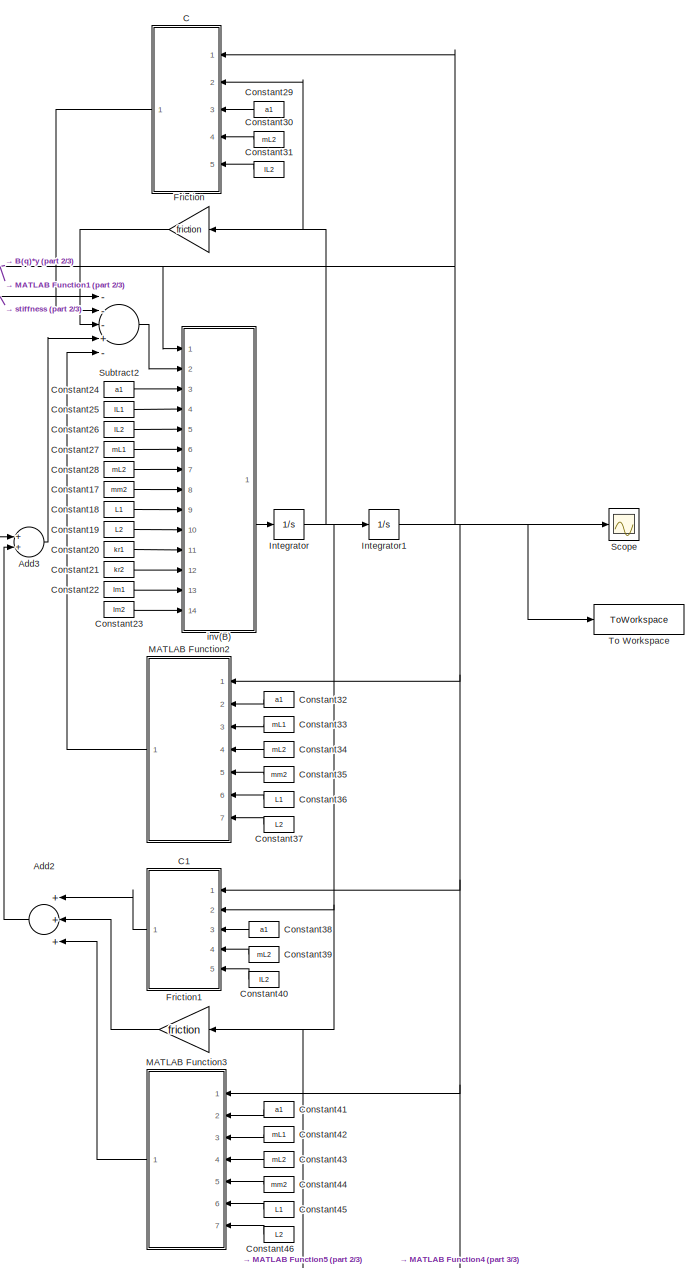
[diagram: root canvas - part 1/3, right side, full height]
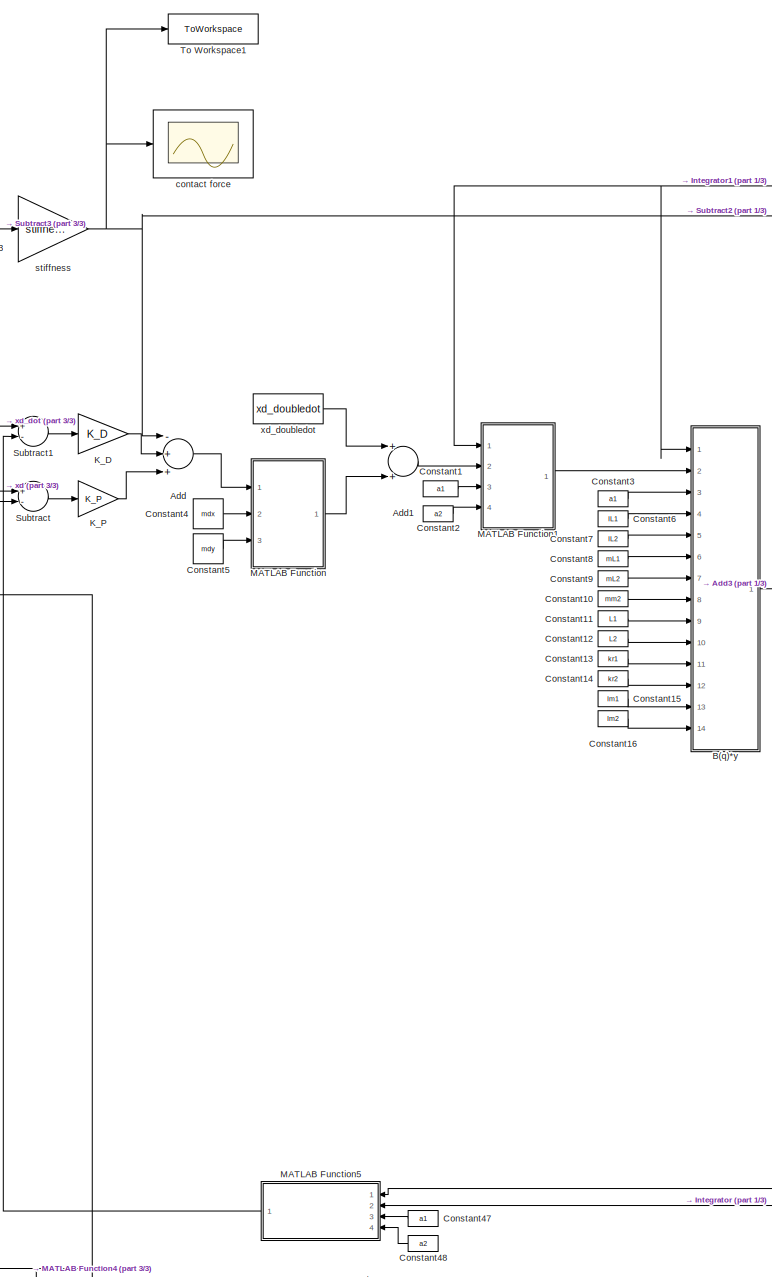
[diagram: root canvas - part 2/3, center side, full height]
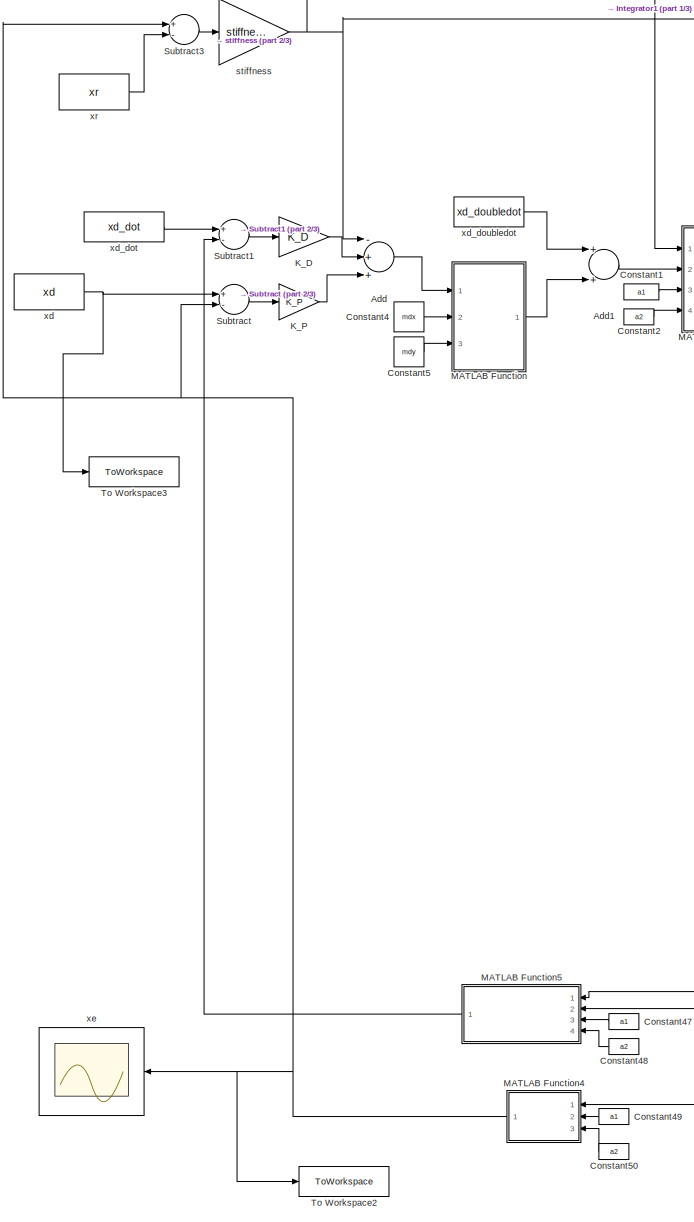
[diagram: root canvas - part 3/3, left side, full height]
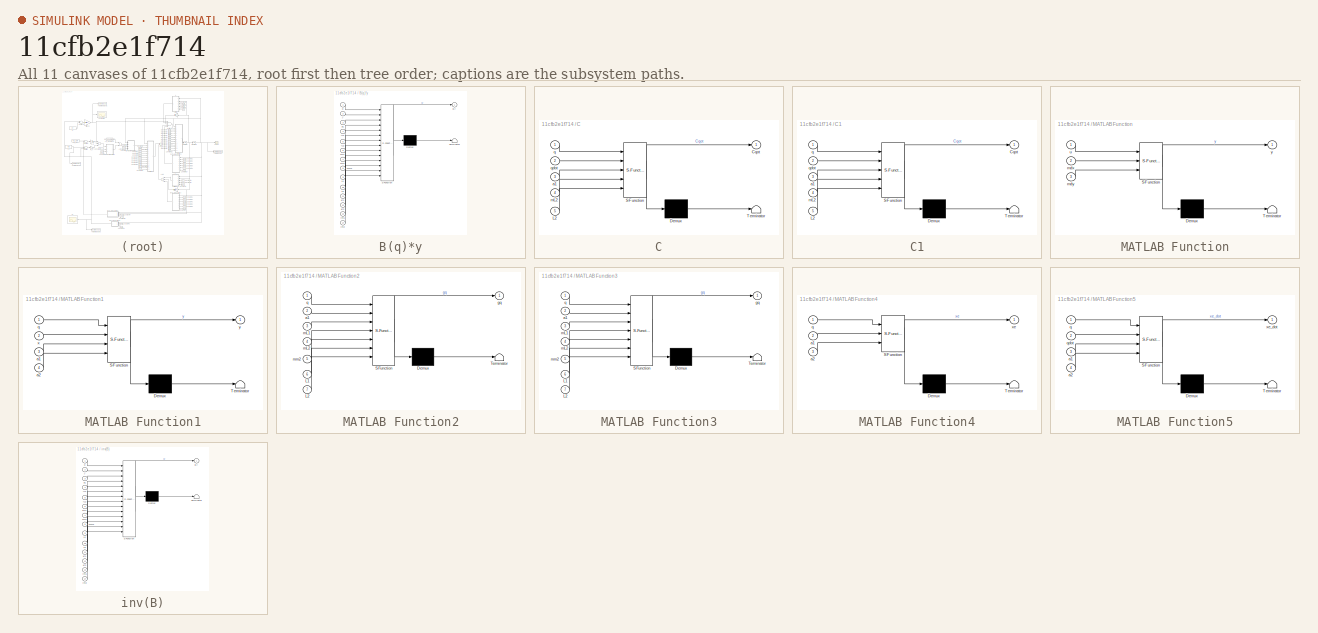
[diagram: thumbnail index - all 11 canvases of the model, root first then tree order]
MODEL slx_11cfb2e1f714
KIND model
CONFIG AbsTol = auto
CONFIG EnableMultiTasking = off
CONFIG FixedStep = auto
CONFIG MaxStep = auto
CONFIG MinStep = auto
CONFIG RelTol = 1e-3
CONFIG SampleTimeConstraint = Unconstrained
CONFIG Solver = VariableStepAuto
CONFIG SolverName = VariableStepAuto
CONFIG StartTime = 0.0
CONFIG StopTime = 1
BLOCK [Sum] Add
  InputSameDT = off
  Inputs = -++
  OutDataTypeStr = Inherit: Inherit via internal rule
  Ports = [3, 1]
  SaturateOnIntegerOverflow = off
BLOCK [Sum] Add1
  InputSameDT = off
  OutDataTypeStr = Inherit: Inherit via internal rule
  Ports = [2, 1]
  SaturateOnIntegerOverflow = off
BLOCK [Sum] Add2
  InputSameDT = off
  Inputs = +++
  OutDataTypeStr = Inherit: Inherit via internal rule
  Ports = [3, 1]
  SaturateOnIntegerOverflow = off
BLOCK [Sum] Add3
  InputSameDT = off
  OutDataTypeStr = Inherit: Inherit via internal rule
  Ports = [2, 1]
  SaturateOnIntegerOverflow = off
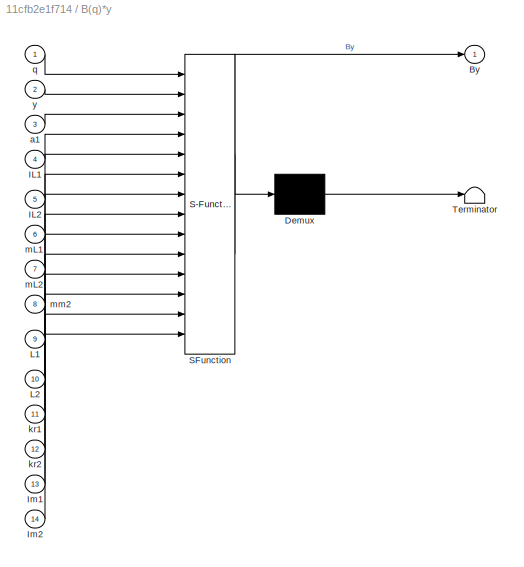
BLOCK [SubSystem] B(q)*y
  ErrorFcn = Stateflow.Translate.translate
  PermitHierarchicalResolution = ExplicitOnly
  Ports = [14, 1]
  RequestExecContextInheritance = off
  SFBlockType = MATLAB Function
  TreatAsAtomicUnit = on
BLOCK [Demux] B(q)*y/ Demux 
  Outputs = 1
  Ports = [1, 1]
BLOCK [S-Function] B(q)*y/ SFunction 
  EnableBusSupport = on
  FunctionName = sf_sfun
  PortCounts = [14 2]
  Ports = [14, 2]
  SFcnIsStateOwnerBlock = off
  SFunctionDeploymentMode = off
  Tag = Stateflow S-Function 3
BLOCK [Terminator] B(q)*y/ Terminator 
BLOCK [Outport] B(q)*y/By
  IconDisplay = Port number
BLOCK [Inport] B(q)*y/IL1
  IconDisplay = Port number
  Port = 4
BLOCK [Inport] B(q)*y/IL2
  IconDisplay = Port number
  Port = 5
BLOCK [Inport] B(q)*y/Im1
  IconDisplay = Port number
  Port = 13
BLOCK [Inport] B(q)*y/Im2
  IconDisplay = Port number
  Port = 14
BLOCK [Inport] B(q)*y/L1
  IconDisplay = Port number
  Port = 9
BLOCK [Inport] B(q)*y/L2
  IconDisplay = Port number
  Port = 10
BLOCK [Inport] B(q)*y/a1
  IconDisplay = Port number
  Port = 3
BLOCK [Inport] B(q)*y/kr1
  IconDisplay = Port number
  Port = 11
BLOCK [Inport] B(q)*y/kr2
  IconDisplay = Port number
  Port = 12
BLOCK [Inport] B(q)*y/mL1
  IconDisplay = Port number
  Port = 6
BLOCK [Inport] B(q)*y/mL2
  IconDisplay = Port number
  Port = 7
BLOCK [Inport] B(q)*y/mm2
  IconDisplay = Port number
  Port = 8
BLOCK [Inport] B(q)*y/q
  IconDisplay = Port number
BLOCK [Inport] B(q)*y/y
  IconDisplay = Port number
  Port = 2
BLOCK [SubSystem] C
  ErrorFcn = Stateflow.Translate.translate
  PermitHierarchicalResolution = ExplicitOnly
  Ports = [5, 1]
  RequestExecContextInheritance = off
  SFBlockType = MATLAB Function
  TreatAsAtomicUnit = on
BLOCK [Demux] C/ Demux 
  Outputs = 1
  Ports = [1, 1]
BLOCK [S-Function] C/ SFunction 
  EnableBusSupport = on
  FunctionName = sf_sfun
  PortCounts = [5 2]
  Ports = [5, 2]
  SFcnIsStateOwnerBlock = off
  SFunctionDeploymentMode = off
  Tag = Stateflow S-Function 5
BLOCK [Terminator] C/ Terminator 
BLOCK [Outport] C/Cqot
  IconDisplay = Port number
BLOCK [Inport] C/L2
  IconDisplay = Port number
  Port = 5
BLOCK [Inport] C/a1
  IconDisplay = Port number
  Port = 3
BLOCK [Inport] C/mL2
  IconDisplay = Port number
  Port = 4
BLOCK [Inport] C/q
  IconDisplay = Port number
BLOCK [Inport] C/qdot
  IconDisplay = Port number
  Port = 2
BLOCK [SubSystem] C1
  ErrorFcn = Stateflow.Translate.translate
  PermitHierarchicalResolution = ExplicitOnly
  Ports = [5, 1]
  RequestExecContextInheritance = off
  SFBlockType = MATLAB Function
  TreatAsAtomicUnit = on
BLOCK [Demux] C1/ Demux 
  Outputs = 1
  Ports = [1, 1]
BLOCK [S-Function] C1/ SFunction 
  EnableBusSupport = on
  FunctionName = sf_sfun
  PortCounts = [5 2]
  Ports = [5, 2]
  SFcnIsStateOwnerBlock = off
  SFunctionDeploymentMode = off
  Tag = Stateflow S-Function 7
BLOCK [Terminator] C1/ Terminator 
BLOCK [Outport] C1/Cqot
  IconDisplay = Port number
BLOCK [Inport] C1/L2
  IconDisplay = Port number
  Port = 5
BLOCK [Inport] C1/a1
  IconDisplay = Port number
  Port = 3
BLOCK [Inport] C1/mL2
  IconDisplay = Port number
  Port = 4
BLOCK [Inport] C1/q
  IconDisplay = Port number
BLOCK [Inport] C1/qdot
  IconDisplay = Port number
  Port = 2
BLOCK [Constant] Constant1
  Value = a1
BLOCK [Constant] Constant10
  Value = mm2
BLOCK [Constant] Constant11
  Value = L1
BLOCK [Constant] Constant12
  Value = L2
BLOCK [Constant] Constant13
  Value = kr1
BLOCK [Constant] Constant14
  Value = kr2
BLOCK [Constant] Constant15
  Value = Im1
BLOCK [Constant] Constant16
  Value = Im2
BLOCK [Constant] Constant17
  Value = mm2
BLOCK [Constant] Constant18
  Value = L1
BLOCK [Constant] Constant19
  Value = L2
BLOCK [Constant] Constant2
  Value = a2
BLOCK [Constant] Constant20
  Value = kr1
BLOCK [Constant] Constant21
  Value = kr2
BLOCK [Constant] Constant22
  Value = Im1
BLOCK [Constant] Constant23
  Value = Im2
BLOCK [Constant] Constant24
  Value = a1
BLOCK [Constant] Constant25
  Value = IL1
BLOCK [Constant] Constant26
  Value = IL2
BLOCK [Constant] Constant27
  Value = mL1
BLOCK [Constant] Constant28
  Value = mL2
BLOCK [Constant] Constant29
  Value = a1
BLOCK [Constant] Constant3
  Value = a1
BLOCK [Constant] Constant30
  Value = mL2
BLOCK [Constant] Constant31
  Value = IL2
BLOCK [Constant] Constant32
  Value = a1
BLOCK [Constant] Constant33
  Value = mL1
BLOCK [Constant] Constant34
  Value = mL2
BLOCK [Constant] Constant35
  Value = mm2
BLOCK [Constant] Constant36
  Value = L1
BLOCK [Constant] Constant37
  Value = L2
BLOCK [Constant] Constant38
  Value = a1
BLOCK [Constant] Constant39
  Value = mL2
BLOCK [Constant] Constant4
  Value = mdx
BLOCK [Constant] Constant40
  Value = IL2
BLOCK [Constant] Constant41
  Value = a1
BLOCK [Constant] Constant42
  Value = mL1
BLOCK [Constant] Constant43
  Value = mL2
BLOCK [Constant] Constant44
  Value = mm2
BLOCK [Constant] Constant45
  Value = L1
BLOCK [Constant] Constant46
  Value = L2
BLOCK [Constant] Constant47
  Value = a1
BLOCK [Constant] Constant48
  Value = a2
BLOCK [Constant] Constant49
  Value = a1
BLOCK [Constant] Constant5
  Value = mdy
BLOCK [Constant] Constant50
  Value = a2
BLOCK [Constant] Constant6
  Value = IL1
BLOCK [Constant] Constant7
  Value = IL2
BLOCK [Constant] Constant8
  Value = mL1
BLOCK [Constant] Constant9
  Value = mL2
BLOCK [Gain] Friction
  Gain = friction
  OutDataTypeStr = Inherit: Inherit via internal rule
  ParamDataTypeStr = Inherit: Inherit via internal rule
  SaturateOnIntegerOverflow = off
BLOCK [Gain] Friction1
  Gain = friction
  OutDataTypeStr = Inherit: Inherit via internal rule
  ParamDataTypeStr = Inherit: Inherit via internal rule
  SaturateOnIntegerOverflow = off
BLOCK [Integrator] Integrator
  InitialCondition = [0; 0]
  Ports = [1, 1]
BLOCK [Integrator] Integrator1
  InitialCondition = qi
  Ports = [1, 1]
BLOCK [Gain] K_D
  Gain = K_D
  OutDataTypeStr = Inherit: Inherit via internal rule
  ParamDataTypeStr = Inherit: Inherit via internal rule
  SaturateOnIntegerOverflow = off
BLOCK [Gain] K_P
  Gain = K_P
  OutDataTypeStr = Inherit: Inherit via internal rule
  ParamDataTypeStr = Inherit: Inherit via internal rule
  SaturateOnIntegerOverflow = off
BLOCK [SubSystem] MATLAB Function
  ErrorFcn = Stateflow.Translate.translate
  PermitHierarchicalResolution = ExplicitOnly
  Ports = [3, 1]
  RequestExecContextInheritance = off
  SFBlockType = MATLAB Function
  TreatAsAtomicUnit = on
BLOCK [Demux] MATLAB Function/ Demux 
  Outputs = 1
  Ports = [1, 1]
BLOCK [S-Function] MATLAB Function/ SFunction 
  EnableBusSupport = on
  FunctionName = sf_sfun
  PortCounts = [3 2]
  Ports = [3, 2]
  SFcnIsStateOwnerBlock = off
  SFunctionDeploymentMode = off
  Tag = Stateflow S-Function 2
BLOCK [Terminator] MATLAB Function/ Terminator 
BLOCK [Inport] MATLAB Function/mdx
  IconDisplay = Port number
  Port = 2
BLOCK [Inport] MATLAB Function/mdy
  IconDisplay = Port number
  Port = 3
BLOCK [Inport] MATLAB Function/u
  IconDisplay = Port number
BLOCK [Outport] MATLAB Function/y
  IconDisplay = Port number
BLOCK [SubSystem] MATLAB Function1
  ErrorFcn = Stateflow.Translate.translate
  PermitHierarchicalResolution = ExplicitOnly
  Ports = [4, 1]
  RequestExecContextInheritance = off
  SFBlockType = MATLAB Function
  TreatAsAtomicUnit = on
BLOCK [Demux] MATLAB Function1/ Demux 
  Outputs = 1
  Ports = [1, 1]
BLOCK [S-Function] MATLAB Function1/ SFunction 
  EnableBusSupport = on
  FunctionName = sf_sfun
  PortCounts = [4 2]
  Ports = [4, 2]
  SFcnIsStateOwnerBlock = off
  SFunctionDeploymentMode = off
  Tag = Stateflow S-Function 1
BLOCK [Terminator] MATLAB Function1/ Terminator 
BLOCK [Inport] MATLAB Function1/a1
  IconDisplay = Port number
  Port = 3
BLOCK [Inport] MATLAB Function1/a2
  IconDisplay = Port number
  Port = 4
BLOCK [Inport] MATLAB Function1/q
  IconDisplay = Port number
BLOCK [Inport] MATLAB Function1/x
  IconDisplay = Port number
  Port = 2
BLOCK [Outport] MATLAB Function1/y
  IconDisplay = Port number
BLOCK [SubSystem] MATLAB Function2
  ErrorFcn = Stateflow.Translate.translate
  PermitHierarchicalResolution = ExplicitOnly
  Ports = [7, 1]
  RequestExecContextInheritance = off
  SFBlockType = MATLAB Function
  TreatAsAtomicUnit = on
BLOCK [Demux] MATLAB Function2/ Demux 
  Outputs = 1
  Ports = [1, 1]
BLOCK [S-Function] MATLAB Function2/ SFunction 
  EnableBusSupport = on
  FunctionName = sf_sfun
  PortCounts = [7 2]
  Ports = [7, 2]
  SFcnIsStateOwnerBlock = off
  SFunctionDeploymentMode = off
  Tag = Stateflow S-Function 6
BLOCK [Terminator] MATLAB Function2/ Terminator 
BLOCK [Inport] MATLAB Function2/L1
  IconDisplay = Port number
  Port = 6
BLOCK [Inport] MATLAB Function2/L2
  IconDisplay = Port number
  Port = 7
BLOCK [Inport] MATLAB Function2/a1
  IconDisplay = Port number
  Port = 2
BLOCK [Outport] MATLAB Function2/gq
  IconDisplay = Port number
BLOCK [Inport] MATLAB Function2/mL1
  IconDisplay = Port number
  Port = 3
BLOCK [Inport] MATLAB Function2/mL2
  IconDisplay = Port number
  Port = 4
BLOCK [Inport] MATLAB Function2/mm2
  IconDisplay = Port number
  Port = 5
BLOCK [Inport] MATLAB Function2/q
  IconDisplay = Port number
BLOCK [SubSystem] MATLAB Function3
  ErrorFcn = Stateflow.Translate.translate
  PermitHierarchicalResolution = ExplicitOnly
  Ports = [7, 1]
  RequestExecContextInheritance = off
  SFBlockType = MATLAB Function
  TreatAsAtomicUnit = on
BLOCK [Demux] MATLAB Function3/ Demux 
  Outputs = 1
  Ports = [1, 1]
BLOCK [S-Function] MATLAB Function3/ SFunction 
  EnableBusSupport = on
  FunctionName = sf_sfun
  PortCounts = [7 2]
  Ports = [7, 2]
  SFcnIsStateOwnerBlock = off
  SFunctionDeploymentMode = off
  Tag = Stateflow S-Function 8
BLOCK [Terminator] MATLAB Function3/ Terminator 
BLOCK [Inport] MATLAB Function3/L1
  IconDisplay = Port number
  Port = 6
BLOCK [Inport] MATLAB Function3/L2
  IconDisplay = Port number
  Port = 7
BLOCK [Inport] MATLAB Function3/a1
  IconDisplay = Port number
  Port = 2
BLOCK [Outport] MATLAB Function3/gq
  IconDisplay = Port number
BLOCK [Inport] MATLAB Function3/mL1
  IconDisplay = Port number
  Port = 3
BLOCK [Inport] MATLAB Function3/mL2
  IconDisplay = Port number
  Port = 4
BLOCK [Inport] MATLAB Function3/mm2
  IconDisplay = Port number
  Port = 5
BLOCK [Inport] MATLAB Function3/q
  IconDisplay = Port number
BLOCK [SubSystem] MATLAB Function4
  ErrorFcn = Stateflow.Translate.translate
  PermitHierarchicalResolution = ExplicitOnly
  Ports = [3, 1]
  RequestExecContextInheritance = off
  SFBlockType = MATLAB Function
  TreatAsAtomicUnit = on
BLOCK [Demux] MATLAB Function4/ Demux 
  Outputs = 1
  Ports = [1, 1]
BLOCK [S-Function] MATLAB Function4/ SFunction 
  EnableBusSupport = on
  FunctionName = sf_sfun
  PortCounts = [3 2]
  Ports = [3, 2]
  SFcnIsStateOwnerBlock = off
  SFunctionDeploymentMode = off
  Tag = Stateflow S-Function 10
BLOCK [Terminator] MATLAB Function4/ Terminator 
BLOCK [Inport] MATLAB Function4/a1
  IconDisplay = Port number
  Port = 2
BLOCK [Inport] MATLAB Function4/a2
  IconDisplay = Port number
  Port = 3
BLOCK [Inport] MATLAB Function4/q
  IconDisplay = Port number
BLOCK [Outport] MATLAB Function4/xe
  IconDisplay = Port number
BLOCK [SubSystem] MATLAB Function5
  ErrorFcn = Stateflow.Translate.translate
  PermitHierarchicalResolution = ExplicitOnly
  Ports = [4, 1]
  RequestExecContextInheritance = off
  SFBlockType = MATLAB Function
  TreatAsAtomicUnit = on
BLOCK [Demux] MATLAB Function5/ Demux 
  Outputs = 1
  Ports = [1, 1]
BLOCK [S-Function] MATLAB Function5/ SFunction 
  EnableBusSupport = on
  FunctionName = sf_sfun
  PortCounts = [4 2]
  Ports = [4, 2]
  SFcnIsStateOwnerBlock = off
  SFunctionDeploymentMode = off
  Tag = Stateflow S-Function 9
BLOCK [Terminator] MATLAB Function5/ Terminator 
BLOCK [Inport] MATLAB Function5/a1
  IconDisplay = Port number
  Port = 3
BLOCK [Inport] MATLAB Function5/a2
  IconDisplay = Port number
  Port = 4
BLOCK [Inport] MATLAB Function5/q
  IconDisplay = Port number
BLOCK [Inport] MATLAB Function5/qdot
  IconDisplay = Port number
  Port = 2
BLOCK [Outport] MATLAB Function5/xe_dot
  IconDisplay = Port number
BLOCK [Scope] Scope
  Floating = off
  NumInputPorts = 1
  Ports = [1]
  ScopeSpecificationString = Simulink.scopes.TimeScopeBlockCfg('CurrentConfiguration', extmgr.ConfigurationSet(extmgr.Configuration('Core','General UI',true),extmgr.Configuration('Core','Source UI',true),extmgr.Configuration('Sources','WiredSimulink',true),extmgr.Configuration('Visuals','Time Domain',true,'SerializedDisplays',{struct('MinYLimReal','-1.6889','MaxYLimReal','2.78369','YLabelReal','','MinYLimMag','0.00000','MaxYL...<+1347ch>
BLOCK [Sum] Subtract
  InputSameDT = off
  Inputs = +-
  OutDataTypeStr = Inherit: Inherit via internal rule
  Ports = [2, 1]
  SaturateOnIntegerOverflow = off
BLOCK [Sum] Subtract1
  InputSameDT = off
  Inputs = +-
  OutDataTypeStr = Inherit: Inherit via internal rule
  Ports = [2, 1]
  SaturateOnIntegerOverflow = off
BLOCK [Sum] Subtract2
  InputSameDT = off
  Inputs = ---+-
  OutDataTypeStr = Inherit: Inherit via internal rule
  Ports = [5, 1]
  SaturateOnIntegerOverflow = off
BLOCK [Sum] Subtract3
  InputSameDT = off
  Inputs = +-
  OutDataTypeStr = Inherit: Inherit via internal rule
  Ports = [2, 1]
  SaturateOnIntegerOverflow = off
BLOCK [ToWorkspace] To Workspace
  FixptAsFi = on
  MaxDataPoints = inf
  Ports = [1]
  SampleTime = -1
  VariableName = q
BLOCK [ToWorkspace] To Workspace1
  FixptAsFi = on
  MaxDataPoints = inf
  Ports = [1]
  SampleTime = -1
  VariableName = f
BLOCK [ToWorkspace] To Workspace2
  FixptAsFi = on
  MaxDataPoints = inf
  Ports = [1]
  SampleTime = -1
  VariableName = xe
BLOCK [ToWorkspace] To Workspace3
  FixptAsFi = on
  MaxDataPoints = inf
  Ports = [1]
  SampleTime = -1
  VariableName = xd
BLOCK [Scope] contact force
  Floating = off
  NumInputPorts = 1
  Ports = [1]
  ScopeSpecificationString = Simulink.scopes.TimeScopeBlockCfg('CurrentConfiguration', extmgr.ConfigurationSet(extmgr.Configuration('Core','General UI',true),extmgr.Configuration('Core','Source UI',true),extmgr.Configuration('Sources','WiredSimulink',true,'DataLoggingVariableName','ScopeData1'),extmgr.Configuration('Visuals','Time Domain',true,'SerializedDisplays',{struct('MinYLimReal','-40.89497','MaxYLimReal','151.31017','Y...<+1394ch>
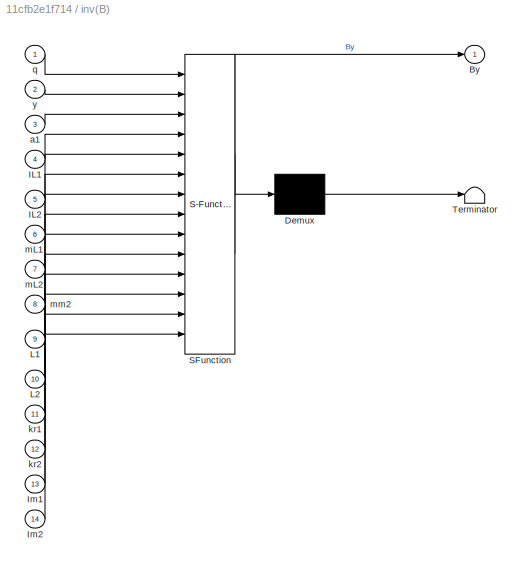
BLOCK [SubSystem] inv(B)
  ErrorFcn = Stateflow.Translate.translate
  PermitHierarchicalResolution = ExplicitOnly
  Ports = [14, 1]
  RequestExecContextInheritance = off
  SFBlockType = MATLAB Function
  TreatAsAtomicUnit = on
BLOCK [Demux] inv(B)/ Demux 
  Outputs = 1
  Ports = [1, 1]
BLOCK [S-Function] inv(B)/ SFunction 
  EnableBusSupport = on
  FunctionName = sf_sfun
  PortCounts = [14 2]
  Ports = [14, 2]
  SFcnIsStateOwnerBlock = off
  SFunctionDeploymentMode = off
  Tag = Stateflow S-Function 4
BLOCK [Terminator] inv(B)/ Terminator 
BLOCK [Outport] inv(B)/By
  IconDisplay = Port number
BLOCK [Inport] inv(B)/IL1
  IconDisplay = Port number
  Port = 4
BLOCK [Inport] inv(B)/IL2
  IconDisplay = Port number
  Port = 5
BLOCK [Inport] inv(B)/Im1
  IconDisplay = Port number
  Port = 13
BLOCK [Inport] inv(B)/Im2
  IconDisplay = Port number
  Port = 14
BLOCK [Inport] inv(B)/L1
  IconDisplay = Port number
  Port = 9
BLOCK [Inport] inv(B)/L2
  IconDisplay = Port number
  Port = 10
BLOCK [Inport] inv(B)/a1
  IconDisplay = Port number
  Port = 3
BLOCK [Inport] inv(B)/kr1
  IconDisplay = Port number
  Port = 11
BLOCK [Inport] inv(B)/kr2
  IconDisplay = Port number
  Port = 12
BLOCK [Inport] inv(B)/mL1
  IconDisplay = Port number
  Port = 6
BLOCK [Inport] inv(B)/mL2
  IconDisplay = Port number
  Port = 7
BLOCK [Inport] inv(B)/mm2
  IconDisplay = Port number
  Port = 8
BLOCK [Inport] inv(B)/q
  IconDisplay = Port number
BLOCK [Inport] inv(B)/y
  IconDisplay = Port number
  Port = 2
BLOCK [Gain] stiffness
  Gain = stiffness
  OutDataTypeStr = Inherit: Inherit via internal rule
  ParamDataTypeStr = Inherit: Inherit via internal rule
  SaturateOnIntegerOverflow = off
BLOCK [Constant] xd
  Value = xd
BLOCK [Constant] xd_dot
  Value = xd_dot
BLOCK [Constant] xd_doubledot
  Value = xd_doubledot
BLOCK [Scope] xe
  Floating = off
  NumInputPorts = 1
  Ports = [1]
  ScopeSpecificationString = Simulink.scopes.TimeScopeBlockCfg('CurrentConfiguration', extmgr.ConfigurationSet(extmgr.Configuration('Core','General UI',true),extmgr.Configuration('Core','Source UI',true),extmgr.Configuration('Sources','WiredSimulink',true,'DataLoggingVariableName','ScopeData1'),extmgr.Configuration('Visuals','Time Domain',true,'SerializedDisplays',{struct('MinYLimReal','-0.28829','MaxYLimReal','1.60746','YLab...<+1398ch>
BLOCK [Constant] xr
  Value = xr
LINE Add1:1 -> MATLAB Function1:2
LINE Add2:1 -> Add3:2
LINE Add3:1 -> Subtract2:4
LINE Add:1 -> MATLAB Function:1
LINE B(q)*y:1 -> Add3:1
LINE C1:1 -> Add2:1
LINE C:1 -> Subtract2:2
LINE Constant10:1 -> B(q)*y:8
LINE Constant11:1 -> B(q)*y:9
LINE Constant12:1 -> B(q)*y:10
LINE Constant13:1 -> B(q)*y:11
LINE Constant14:1 -> B(q)*y:12
LINE Constant15:1 -> B(q)*y:13
LINE Constant16:1 -> B(q)*y:14
LINE Constant17:1 -> inv(B):8
LINE Constant18:1 -> inv(B):9
LINE Constant19:1 -> inv(B):10
LINE Constant1:1 -> MATLAB Function1:3
LINE Constant20:1 -> inv(B):11
LINE Constant21:1 -> inv(B):12
LINE Constant22:1 -> inv(B):13
LINE Constant23:1 -> inv(B):14
LINE Constant24:1 -> inv(B):3
LINE Constant25:1 -> inv(B):4
LINE Constant26:1 -> inv(B):5
LINE Constant27:1 -> inv(B):6
LINE Constant28:1 -> inv(B):7
LINE Constant29:1 -> C:3
LINE Constant2:1 -> MATLAB Function1:4
LINE Constant30:1 -> C:4
LINE Constant31:1 -> C:5
LINE Constant32:1 -> MATLAB Function2:2
LINE Constant33:1 -> MATLAB Function2:3
LINE Constant34:1 -> MATLAB Function2:4
LINE Constant35:1 -> MATLAB Function2:5
LINE Constant36:1 -> MATLAB Function2:6
LINE Constant37:1 -> MATLAB Function2:7
LINE Constant38:1 -> C1:3
LINE Constant39:1 -> C1:4
LINE Constant3:1 -> B(q)*y:3
LINE Constant40:1 -> C1:5
LINE Constant41:1 -> MATLAB Function3:2
LINE Constant42:1 -> MATLAB Function3:3
LINE Constant43:1 -> MATLAB Function3:4
LINE Constant44:1 -> MATLAB Function3:5
LINE Constant45:1 -> MATLAB Function3:6
LINE Constant46:1 -> MATLAB Function3:7
LINE Constant47:1 -> MATLAB Function5:3
LINE Constant48:1 -> MATLAB Function5:4
LINE Constant49:1 -> MATLAB Function4:2
LINE Constant4:1 -> MATLAB Function:2
LINE Constant50:1 -> MATLAB Function4:3
LINE Constant5:1 -> MATLAB Function:3
LINE Constant6:1 -> B(q)*y:4
LINE Constant7:1 -> B(q)*y:5
LINE Constant8:1 -> B(q)*y:6
LINE Constant9:1 -> B(q)*y:7
LINE Friction1:1 -> Add2:2
LINE Friction:1 -> Subtract2:3
NET Integrator1:1 -> B(q)*y:1, C1:1, C:1, MATLAB Function1:1, MATLAB Function2:1, MATLAB Function3:1, MATLAB Function4:1, MATLAB Function5:1, Scope:1, To Workspace:1, inv(B):1
NET Integrator:1 -> C1:2, C:2, Friction1:1, Friction:1, Integrator1:1, MATLAB Function5:2
LINE K_D:1 -> Add:2
LINE K_P:1 -> Add:3
LINE MATLAB Function1:1 -> B(q)*y:2
LINE MATLAB Function2:1 -> Subtract2:5
LINE MATLAB Function3:1 -> Add2:3
NET MATLAB Function4:1 -> Subtract3:1, Subtract:2, To Workspace2:1, xe:1
LINE MATLAB Function5:1 -> Subtract1:2
LINE MATLAB Function:1 -> Add1:2
LINE Subtract1:1 -> K_D:1
LINE Subtract2:1 -> inv(B):2
LINE Subtract3:1 -> stiffness:1
LINE Subtract:1 -> K_P:1
LINE inv(B):1 -> Integrator:1
NET stiffness:1 -> Add:1, Subtract2:1, To Workspace1:1, contact force:1
NET xd:1 -> Subtract:1, To Workspace3:1
LINE xd_dot:1 -> Subtract1:1
LINE xd_doubledot:1 -> Add1:1
LINE xr:1 -> Subtract3:2
note: NET lines group one-source signal fan-out (src -> all destinations, sorted); 1:1 wires keep LINE
CHART MATLAB Function1 states=1 transitions=1
  STATE_LABEL 'eML_blk_kernel()'
  STATE_LABEL 'SCRIPT:\nfunction y = fcn(q,x,a1,a2)\nJa = [-a1*sin(q(1))-a2*sin(q(1)+q(2)), -a2*sin(q(1)+q(2));\n    a1*cos(q(1))+a2*cos(q(1)+q(2)), a2*cos(q(1)+q(2))];\ny = inv(Ja)*x;\n\n'
CHART MATLAB Function states=1 transitions=1
  STATE_LABEL 'eML_blk_kernel()'
  STATE_LABEL "SCRIPT:\nfunction y = fcn(u,mdx,mdy)\nMd = [mdx 0; 0 mdy];\ny = u'*inv(Md);\n"
CHART B(q)*y states=1 transitions=1
  STATE_LABEL 'eML_blk_kernel()'
  STATE_LABEL 'SCRIPT:\nfunction By = fcn(q,y,a1, IL1, IL2, mL1, mL2 ,mm2, L1, L2, kr1, kr2, Im1, Im2)\nb11 = IL1 + mL1*(L1.^2) + (kr1.^2)*Im1 + IL2 +... \n    mL2*(a1.^2 + L2.^2 + 2*a1*L2*cos(q(2))) + Im2 +mm2*(a1.^2);\nb12 = IL2 + mL2*(L2.^2 + a1*L2*cos(q(2))) + kr2*Im2;\nb21 = b12;\nb22 = IL2 + mL2*L2.^2 + (kr2.^2)*Im2;\nB = [b11 b12; b21 b22];\nBy = B*y;\n'
CHART inv(B) states=1 transitions=1
  STATE_LABEL 'eML_blk_kernel()'
  STATE_LABEL 'SCRIPT:\nfunction By = fcn(q,y,a1,IL1,IL2,mL1,mL2,mm2,L1,L2,kr1,kr2,Im1,Im2)\nif nargin==1\n    q = [0.5*pi;0.5*pi];\nend\n\nb11 = IL1 + mL1*(L1.^2) + (kr1.^2)*Im1 + IL2 +... \n    mL2*(a1.^2 + L2.^2 + 2*a1*L2*cos(q(2))) + Im2 +mm2*(a1.^2);\nb12 = IL2 + mL2*(L2.^2 + a1*L2*cos(q(2))) + kr2*Im2;\nb21 = b12;\nb22 = IL2 + mL2*L2.^2 + (kr2.^2)*Im2;\nB = [b11 b12; b21 b22];\nBy = inv(B)*y;\n'
CHART C states=1 transitions=1
  STATE_LABEL 'eML_blk_kernel()'
  STATE_LABEL 'SCRIPT:\nfunction Cqot = fcn(q,qdot,a1,mL2,L2)\nc11 = (-mL2*a1*L2*sin(q(2)))*qdot(2);\nc12 = (-mL2*a1*L2*sin(q(2)))*(qdot(1)+qdot(2));\nc21 = -(-mL2*a1*L2*sin(q(2)))*qdot(1);\nc22 = 0;\nC = [c11 c12; c21 c22];\nCqot = C*qdot;\n'
CHART MATLAB Function2 states=1 transitions=1
  STATE_LABEL 'eML_blk_kernel()'
  STATE_LABEL 'SCRIPT:\nfunction gq = fcn(q,a1,mL1,mL2,mm2,L1,L2)\ng = 9.81;\ng1 = (mL1*L1 + mm2*a1 + mL2*a1)*g*cos(q(1)) + mL2*L2*g*cos(q(1)+q(2));\ng2 = mL2*L2*g*cos(q(1)+q(2));\ngq = [g1;g2];\n'
CHART C1 states=1 transitions=1
  STATE_LABEL 'eML_blk_kernel()'
  STATE_LABEL 'SCRIPT:\nfunction Cqot = fcn(q,qdot,a1,mL2,L2)\nc11 = (-mL2*a1*L2*sin(q(2)))*qdot(2);\nc12 = (-mL2*a1*L2*sin(q(2)))*(qdot(1)+qdot(2));\nc21 = -(-mL2*a1*L2*sin(q(2)))*qdot(1);\nc22 = 0;\nC = [c11 c12; c21 c22];\nCqot = C*qdot;\n'
CHART MATLAB Function3 states=1 transitions=1
  STATE_LABEL 'eML_blk_kernel()'
  STATE_LABEL 'SCRIPT:\nfunction gq = fcn(q,a1,mL1,mL2,mm2,L1,L2)\ng = 9.81;\ng1 = (mL1*L1 + mm2*a1 + mL2*a1)*g*cos(q(1)) + mL2*L2*g*cos(q(1)+q(2));\ng2 = mL2*L2*g*cos(q(1)+q(2));\ngq = [g1;g2];\n'
CHART MATLAB Function5 states=1 transitions=1
  STATE_LABEL 'eML_blk_kernel()'
  STATE_LABEL 'SCRIPT:\nfunction xe_dot = fcn(q,qdot,a1,a2)\nJa = [-a1*sin(q(1))-a2*sin(q(1)+q(2)), -a2*sin(q(1)+q(2));\n       a1*cos(q(1))+a2*cos(q(1)+q(2)), a2*cos(q(1)+q(2))];\nxe_dot = Ja*qdot;'
CHART MATLAB Function4 states=1 transitions=1
  STATE_LABEL 'eML_blk_kernel()'
  STATE_LABEL 'SCRIPT:\nfunction xe = fcn(q,a1,a2)\nxe = [a1*cos(q(1))+a2*cos(q(1)+q(2));\n    a1*sin(q(1))+a2*sin(q(1)+q(2))];\n'
